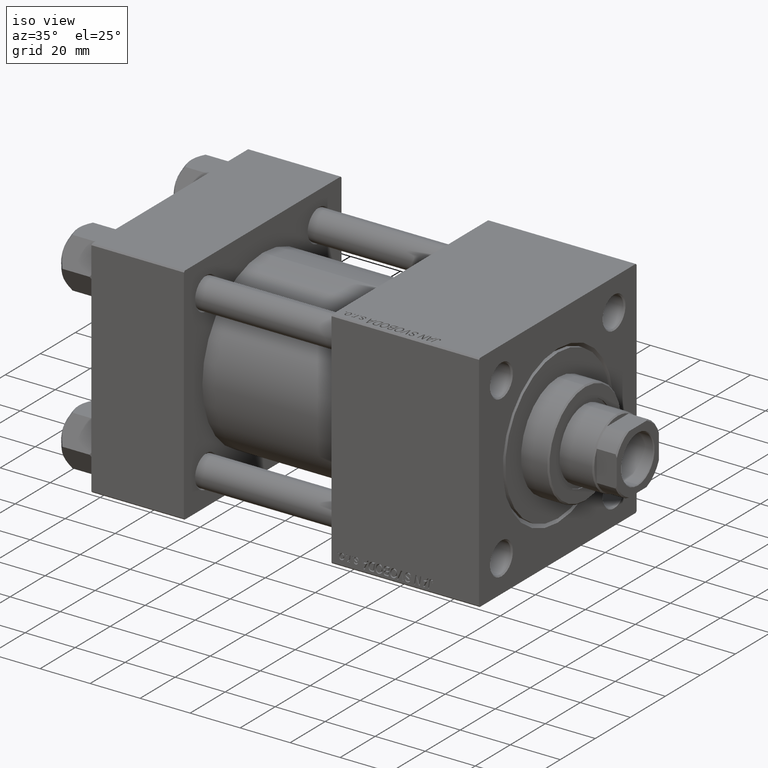
[diagram: clean part render]
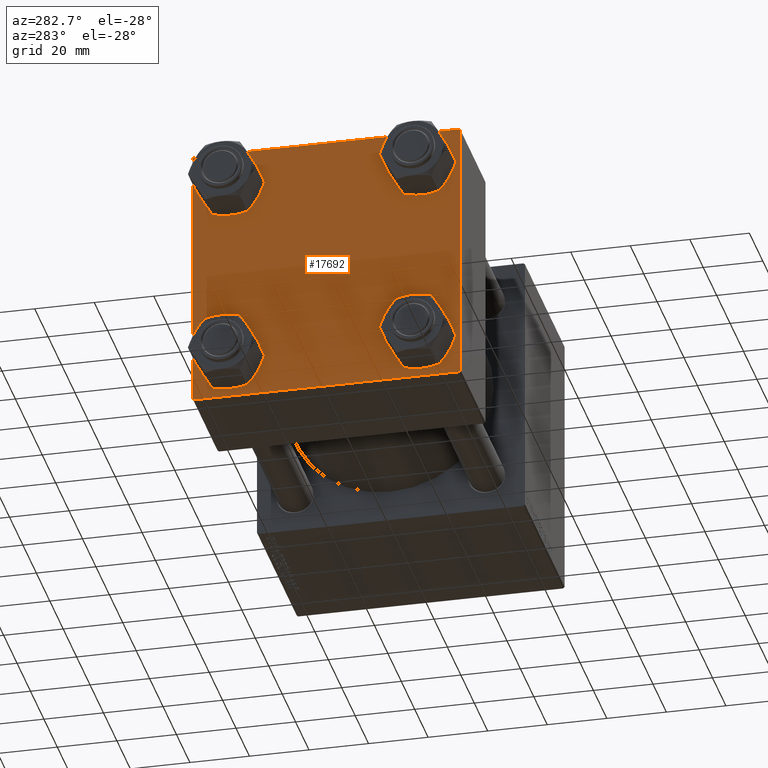
[diagram: tour spotlight — one face highlighted and labeled with its STEP entity id]
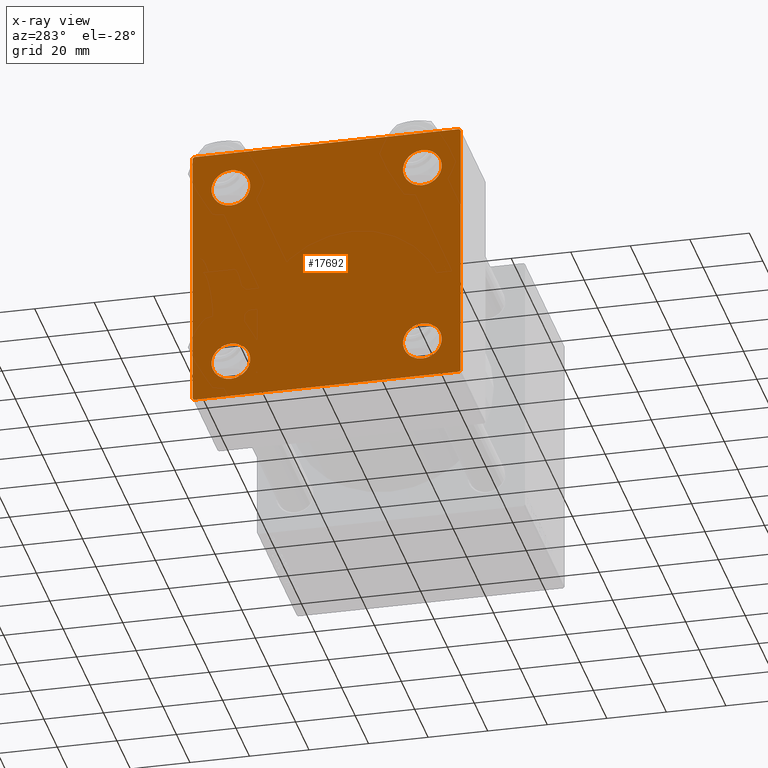
[diagram: x-ray of the same camera — body ghosted, this tour face saturated]
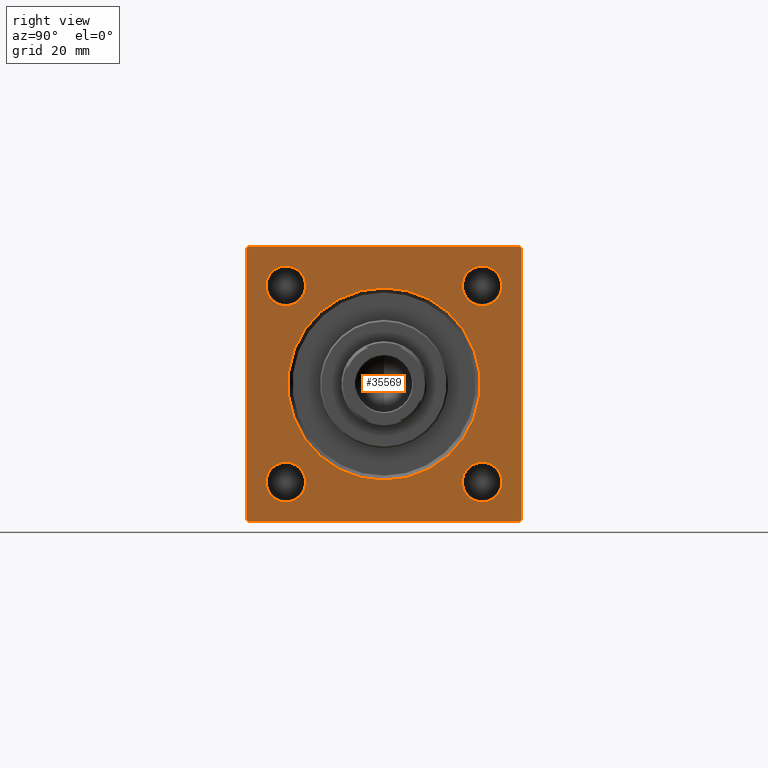
[diagram: tour spotlight — one face highlighted and labeled with its STEP entity id]
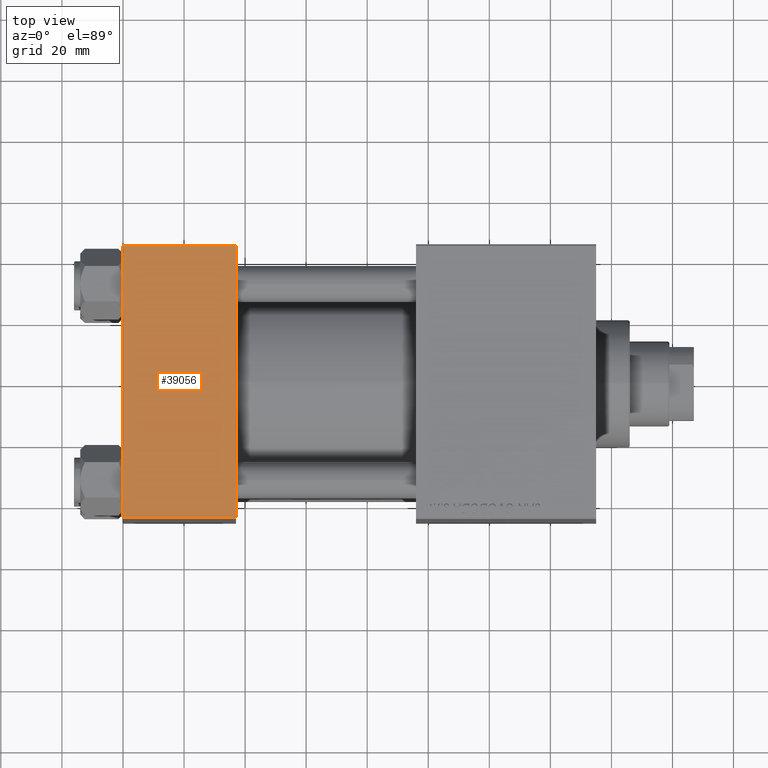
[diagram: tour spotlight — one face highlighted and labeled with its STEP entity id]
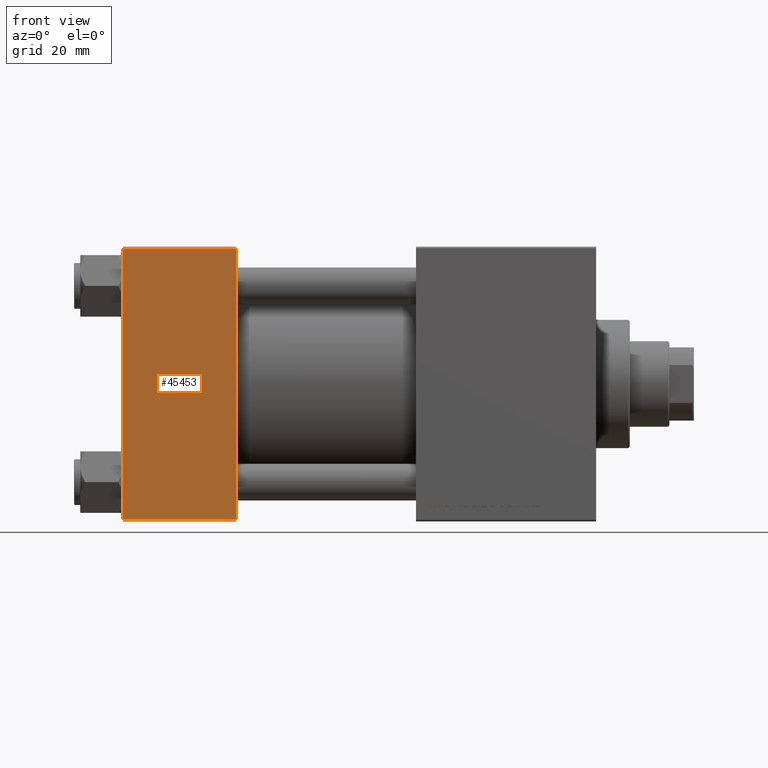
[diagram: tour spotlight — one face highlighted and labeled with its STEP entity id]
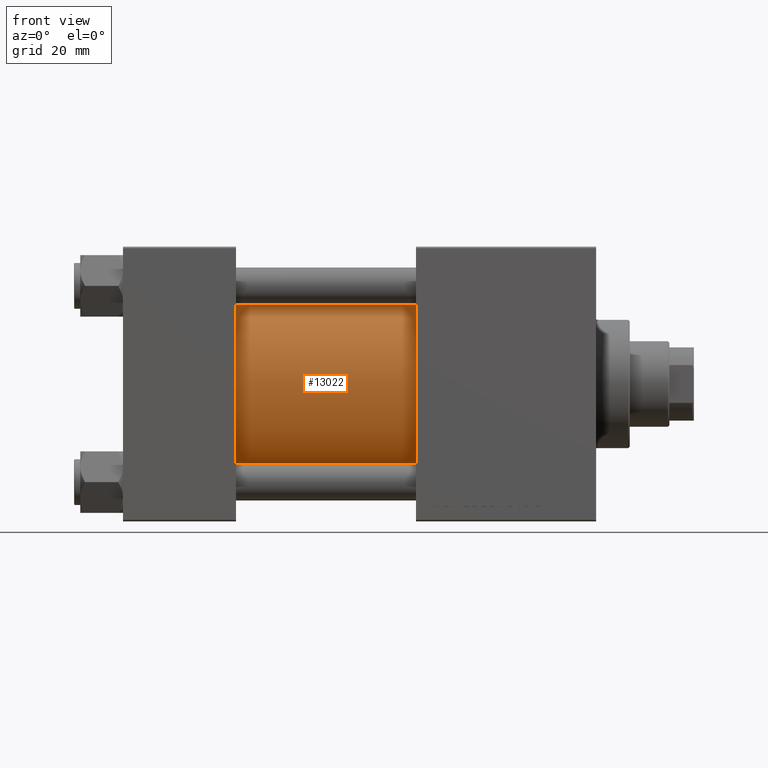
[diagram: tour spotlight — one face highlighted and labeled with its STEP entity id]
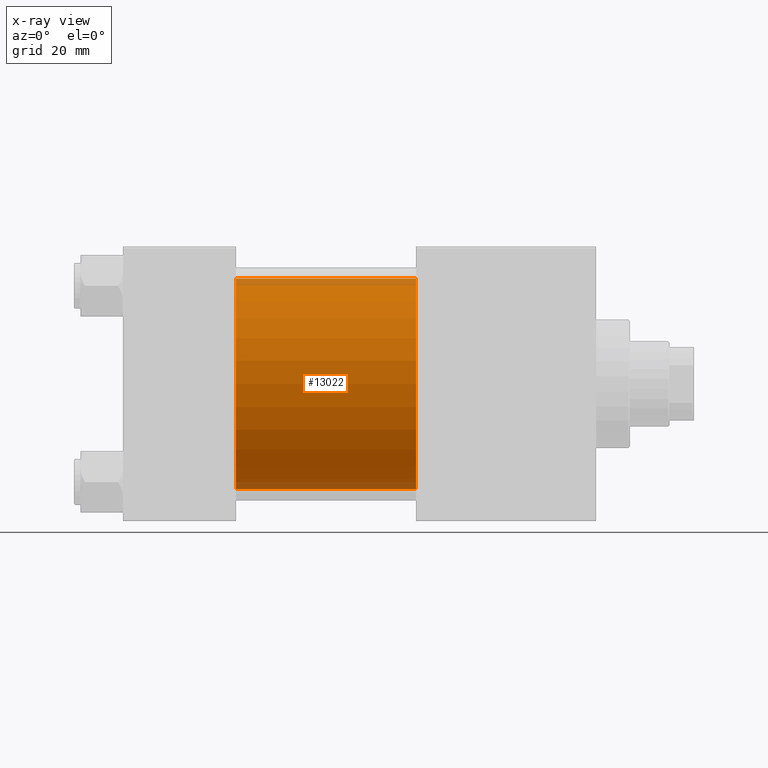
[diagram: x-ray of the same camera — body ghosted, this tour face saturated]
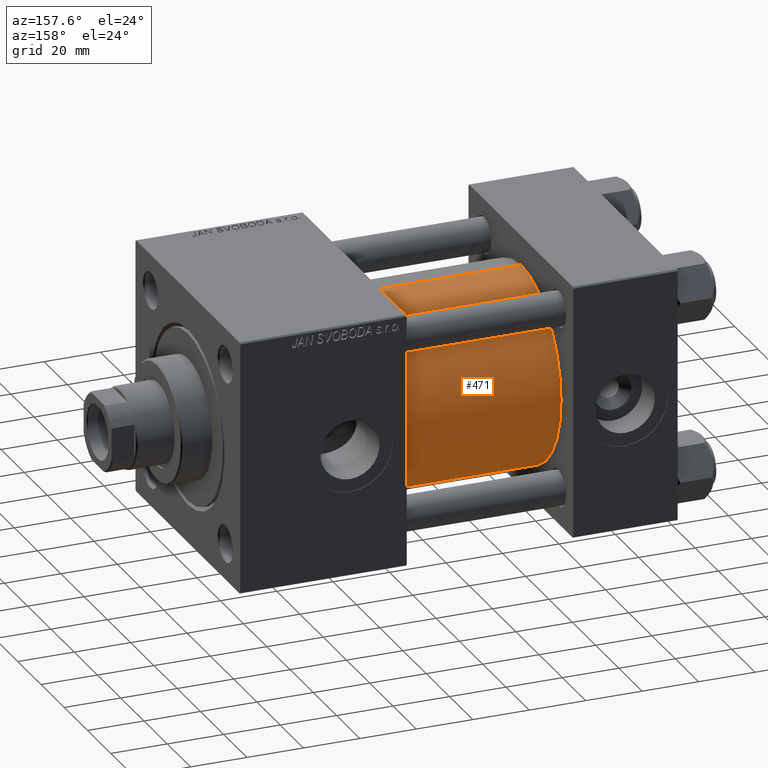
[diagram: tour spotlight — one face highlighted and labeled with its STEP entity id]
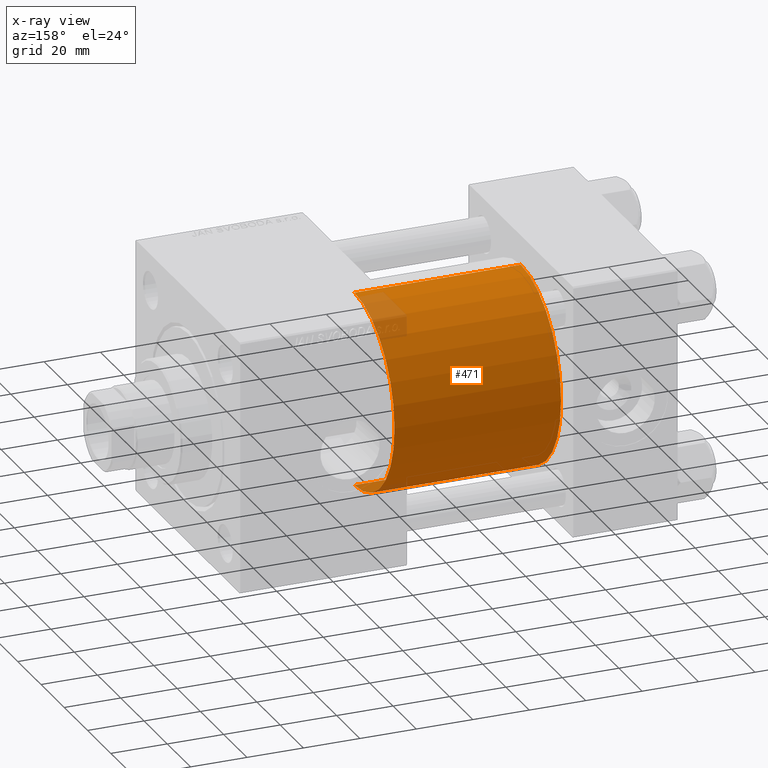
[diagram: x-ray of the same camera — body ghosted, this tour face saturated]
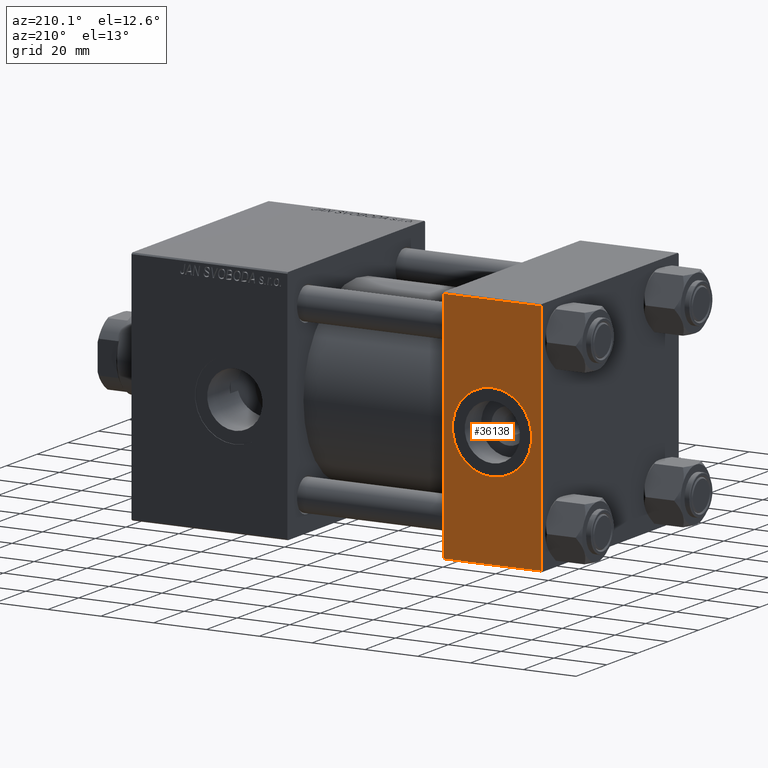
[diagram: tour spotlight — one face highlighted and labeled with its STEP entity id]
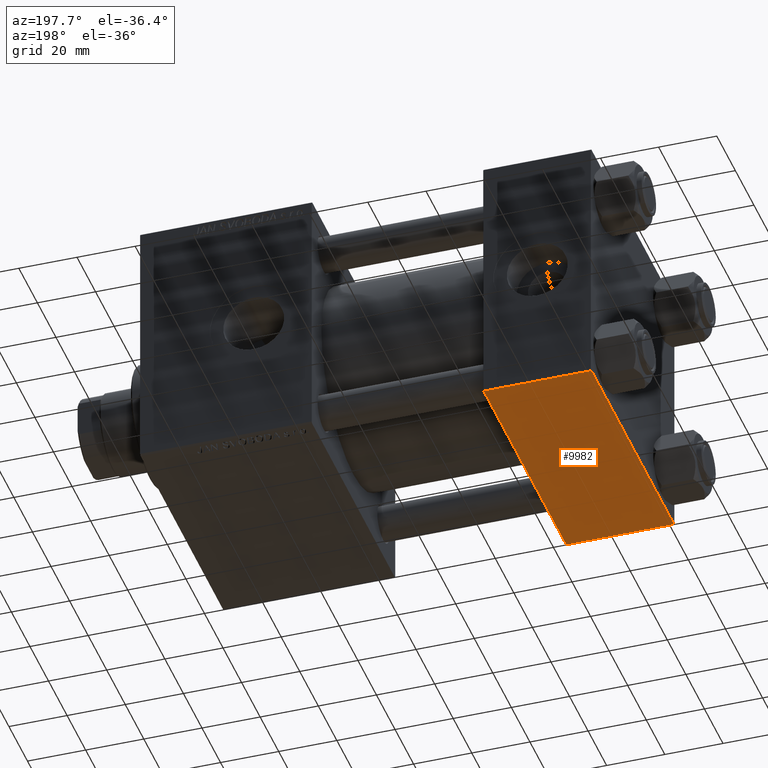
[diagram: tour spotlight — one face highlighted and labeled with its STEP entity id]
A machine part: a face-by-face anatomy tour. The part has 1149 B-rep faces; the first image is the clean iso view, then the 8 largest visible faces are spotlighted one at a time (largest first), each with its STEP entity span.

Face 1 — auxiliary view, entity #17692. An x-ray twin of the same camera follows (body ghosted, this face saturated) — the face is partly hidden behind the body. In plain terms, the highlighted planar face has unit normal (-1, 0, 0).
Definition (entity closure, byte-faithful):
#486 = LINE ( 'NONE', #50270, #1119 ) ;
#1119 = VECTOR ( 'NONE', #19545, 1000.000000000000000 ) ;
#1322 = EDGE_CURVE ( 'NONE', #25451, #4205, #42730, .T. ) ;
#1379 = EDGE_LOOP ( 'NONE', ( #21966, #42613 ) ) ;
#2229 = AXIS2_PLACEMENT_3D ( 'NONE', #31718, #26905, #35535 ) ;
#2374 = EDGE_CURVE ( 'NONE', #20298, #7871, #31446, .T. ) ;
#2646 = DIRECTION ( 'NONE',  ( -0.000000000000000000, -0.7071067811865474617, -0.7071067811865474617 ) ) ;
#2801 = VECTOR ( 'NONE', #7809, 1000.000000000000000 ) ;
#2813 = VERTEX_POINT ( 'NONE', #22726 ) ;
#3236 = EDGE_CURVE ( 'NONE', #4205, #33014, #21611, .T. ) ;
#3612 = DIRECTION ( 'NONE',  ( 0.000000000000000000, 0.000000000000000000, 1.000000000000000000 ) ) ;
#3863 = CARTESIAN_POINT ( 'NONE',  ( 0.000000000000000000, -32.14999999999997726, -32.15000000000000568 ) ) ;
#4002 = LINE ( 'NONE', #34981, #2801 ) ;
#4096 = CARTESIAN_POINT ( 'NONE',  ( 0.000000000000000000, 44.50000000000000000, -44.99999999999999289 ) ) ;
#4205 = VERTEX_POINT ( 'NONE', #21878 ) ;
#4348 = CARTESIAN_POINT ( 'NONE',  ( 0.000000000000000000, 32.14999999999999147, -32.14999999999999858 ) ) ;
#5831 = DIRECTION ( 'NONE',  ( 0.000000000000000000, -0.7071067811865672237, 0.7071067811865279218 ) ) ;
#6208 = AXIS2_PLACEMENT_3D ( 'NONE', #47480, #27947, #27446 ) ;
#6367 = EDGE_CURVE ( 'NONE', #7871, #20298, #46978, .T. ) ;
#6653 = CIRCLE ( 'NONE', #45575, 6.500000000000019540 ) ;
#6854 = ORIENTED_EDGE ( 'NONE', *, *, #6367, .T. ) ;
#7482 = CARTESIAN_POINT ( 'NONE',  ( 0.000000000000000000, -45.00000000000000000, -44.49999999999997158 ) ) ;
#7809 = DIRECTION ( 'NONE',  ( 0.000000000000000000, -1.000000000000000000, -7.709882115452476934E-17 ) ) ;
#7871 = VERTEX_POINT ( 'NONE', #10065 ) ;
#7951 = DIRECTION ( 'NONE',  ( 0.000000000000000000, 0.7071067811865574537, -0.7071067811865376918 ) ) ;
#8235 = DIRECTION ( 'NONE',  ( -0.000000000000000000, 0.000000000000000000, 1.000000000000000000 ) ) ;
#8534 = EDGE_LOOP ( 'NONE', ( #28169, #25522 ) ) ;
#8683 = ORIENTED_EDGE ( 'NONE', *, *, #3236, .T. ) ;
#9093 = DIRECTION ( 'NONE',  ( 1.000000000000000000, -0.000000000000000000, 0.000000000000000000 ) ) ;
#9180 = EDGE_CURVE ( 'NONE', #33014, #21628, #21703, .T. ) ;
#10065 = CARTESIAN_POINT ( 'NONE',  ( 0.000000000000000000, 32.14999999999999147, 25.64999999999997726 ) ) ;
#10106 = CARTESIAN_POINT ( 'NONE',  ( 0.000000000000000000, -32.14999999999997726, -32.15000000000000568 ) ) ;
#10177 = EDGE_LOOP ( 'NONE', ( #36366, #6854 ) ) ;
#11027 = DIRECTION ( 'NONE',  ( 1.000000000000000000, -0.000000000000000000, 0.000000000000000000 ) ) ;
#11452 = ORIENTED_EDGE ( 'NONE', *, *, #9180, .T. ) ;
#12214 = DIRECTION ( 'NONE',  ( 0.000000000000000000, 0.000000000000000000, 1.000000000000000000 ) ) ;
#14054 = CARTESIAN_POINT ( 'NONE',  ( 0.000000000000000000, -32.14999999999997726, 38.64999999999999147 ) ) ;
#14386 = ORIENTED_EDGE ( 'NONE', *, *, #1322, .T. ) ;
#14489 = CARTESIAN_POINT ( 'NONE',  ( 0.000000000000000000, -45.00000000000000000, 44.99999999999998579 ) ) ;
#14636 = AXIS2_PLACEMENT_3D ( 'NONE', #4348, #46992, #12214 ) ;
#14850 = CARTESIAN_POINT ( 'NONE',  ( 0.000000000000000000, 32.14999999999999147, -25.64999999999997726 ) ) ;
#15681 = AXIS2_PLACEMENT_3D ( 'NONE', #35656, #20408, #8235 ) ;
#16304 = EDGE_CURVE ( 'NONE', #23198, #44279, #23721, .T. ) ;
#16445 = ORIENTED_EDGE ( 'NONE', *, *, #45573, .F. ) ;
#16794 = VERTEX_POINT ( 'NONE', #7482 ) ;
#17392 = VERTEX_POINT ( 'NONE', #19052 ) ;
#17599 = CARTESIAN_POINT ( 'NONE',  ( 0.000000000000000000, 45.00000000000000000, -44.49999999999996447 ) ) ;
#17692 = ADVANCED_FACE ( 'NONE', ( #38961, #43013, #27287, #39708, #20168 ), #43263, .T. ) ;
#18082 = AXIS2_PLACEMENT_3D ( 'NONE', #10106, #9093, #32718 ) ;
#19052 = CARTESIAN_POINT ( 'NONE',  ( 0.000000000000000000, -45.00000000000000000, 44.49999999999998579 ) ) ;
#19108 = DIRECTION ( 'NONE',  ( 1.000000000000000000, -0.000000000000000000, 0.000000000000000000 ) ) ;
#19413 = EDGE_CURVE ( 'NONE', #25451, #39112, #486, .T. ) ;
#19475 = VERTEX_POINT ( 'NONE', #20532 ) ;
#19517 = EDGE_LOOP ( 'NONE', ( #8683, #11452, #44735, #47481, #16445, #24128, #26364, #14386 ) ) ;
#19545 = DIRECTION ( 'NONE',  ( 0.000000000000000000, -1.000000000000000000, -2.312964634635742957E-16 ) ) ;
#20168 = FACE_OUTER_BOUND ( 'NONE', #19517, .T. ) ;
#20298 = VERTEX_POINT ( 'NONE', #37546 ) ;
#20316 = EDGE_CURVE ( 'NONE', #21628, #2813, #4002, .T. ) ;
#20408 = DIRECTION ( 'NONE',  ( -1.000000000000000000, 0.000000000000000000, -0.000000000000000000 ) ) ;
#20532 = CARTESIAN_POINT ( 'NONE',  ( 0.000000000000000000, 32.14999999999999147, -38.65000000000001990 ) ) ;
#20641 = CARTESIAN_POINT ( 'NONE',  ( 0.000000000000000000, 32.14999999999999147, 32.14999999999999858 ) ) ;
#20996 = DIRECTION ( 'NONE',  ( -0.000000000000000000, 0.7071067811865474617, 0.7071067811865474617 ) ) ;
#21611 = LINE ( 'NONE', #37602, #42812 ) ;
#21613 = CIRCLE ( 'NONE', #6208, 6.499999999999977796 ) ;
#21628 = VERTEX_POINT ( 'NONE', #4096 ) ;
#21703 = LINE ( 'NONE', #37182, #35790 ) ;
#21878 = CARTESIAN_POINT ( 'NONE',  ( 0.000000000000000000, 45.00000000000000000, 44.49999999999999289 ) ) ;
#21966 = ORIENTED_EDGE ( 'NONE', *, *, #16304, .T. ) ;
#22591 = CARTESIAN_POINT ( 'NONE',  ( 0.000000000000000000, 32.14999999999999147, -32.14999999999999858 ) ) ;
#22713 = EDGE_CURVE ( 'NONE', #44279, #23198, #45815, .T. ) ;
#22726 = CARTESIAN_POINT ( 'NONE',  ( 0.000000000000000000, -44.49999999999994316, -45.00000000000000000 ) ) ;
#22835 = DIRECTION ( 'NONE',  ( 0.000000000000000000, 0.000000000000000000, 1.000000000000000000 ) ) ;
#23198 = VERTEX_POINT ( 'NONE', #26292 ) ;
#23721 = CIRCLE ( 'NONE', #18082, 6.499999999999977796 ) ;
#23842 = ORIENTED_EDGE ( 'NONE', *, *, #26513, .T. ) ;
#24128 = ORIENTED_EDGE ( 'NONE', *, *, #24713, .T. ) ;
#24713 = EDGE_CURVE ( 'NONE', #17392, #39112, #36236, .T. ) ;
#25102 = AXIS2_PLACEMENT_3D ( 'NONE', #20641, #31324, #47791 ) ;
#25142 = CARTESIAN_POINT ( 'NONE',  ( 0.000000000000000000, -44.74999999999873523, -44.75000000000122924 ) ) ;
#25451 = VERTEX_POINT ( 'NONE', #45731 ) ;
#25522 = ORIENTED_EDGE ( 'NONE', *, *, #38822, .T. ) ;
#26279 = DIRECTION ( 'NONE',  ( 0.000000000000000000, 0.000000000000000000, 1.000000000000000000 ) ) ;
#26292 = CARTESIAN_POINT ( 'NONE',  ( 0.000000000000000000, -32.14999999999997726, -25.65000000000002700 ) ) ;
#26364 = ORIENTED_EDGE ( 'NONE', *, *, #19413, .F. ) ;
#26387 = ORIENTED_EDGE ( 'NONE', *, *, #48340, .T. ) ;
#26513 = EDGE_CURVE ( 'NONE', #46171, #38156, #21613, .T. ) ;
#26905 = DIRECTION ( 'NONE',  ( 1.000000000000000000, -0.000000000000000000, 0.000000000000000000 ) ) ;
#27287 = FACE_BOUND ( 'NONE', #8534, .T. ) ;
#27348 = VECTOR ( 'NONE', #7951, 999.9999999999998863 ) ;
#27446 = DIRECTION ( 'NONE',  ( 0.000000000000000000, 0.000000000000000000, 1.000000000000000000 ) ) ;
#27947 = DIRECTION ( 'NONE',  ( 1.000000000000000000, -0.000000000000000000, 0.000000000000000000 ) ) ;
#28169 = ORIENTED_EDGE ( 'NONE', *, *, #43917, .T. ) ;
#29416 = VECTOR ( 'NONE', #29972, 1000.000000000000000 ) ;
#29972 = DIRECTION ( 'NONE',  ( 0.000000000000000000, 0.000000000000000000, -1.000000000000000000 ) ) ;
#31324 = DIRECTION ( 'NONE',  ( 1.000000000000000000, -0.000000000000000000, 0.000000000000000000 ) ) ;
#31446 = CIRCLE ( 'NONE', #2229, 6.500000000000019540 ) ;
#31679 = CARTESIAN_POINT ( 'NONE',  ( -0.000000000000000000, -44.74999999999999289, 44.74999999999999289 ) ) ;
#31718 = CARTESIAN_POINT ( 'NONE',  ( 0.000000000000000000, 32.14999999999999147, 32.14999999999999858 ) ) ;
#32718 = DIRECTION ( 'NONE',  ( 0.000000000000000000, 0.000000000000000000, 1.000000000000000000 ) ) ;
#33014 = VERTEX_POINT ( 'NONE', #17599 ) ;
#34981 = CARTESIAN_POINT ( 'NONE',  ( 0.000000000000000000, 45.00000000000000000, -44.99999999999999289 ) ) ;
#35535 = DIRECTION ( 'NONE',  ( 0.000000000000000000, 0.000000000000000000, 1.000000000000000000 ) ) ;
#35656 = CARTESIAN_POINT ( 'NONE',  ( 0.000000000000000000, 0.000000000000000000, 0.000000000000000000 ) ) ;
#35790 = VECTOR ( 'NONE', #2646, 1000.000000000000114 ) ;
#36236 = LINE ( 'NONE', #31679, #45932 ) ;
#36366 = ORIENTED_EDGE ( 'NONE', *, *, #2374, .T. ) ;
#37182 = CARTESIAN_POINT ( 'NONE',  ( 0.000000000000000000, 44.74999999999999289, -44.74999999999999289 ) ) ;
#37546 = CARTESIAN_POINT ( 'NONE',  ( 0.000000000000000000, 32.14999999999999147, 38.65000000000001990 ) ) ;
#37602 = CARTESIAN_POINT ( 'NONE',  ( 0.000000000000000000, 45.00000000000000000, 45.00000000000000711 ) ) ;
#38156 = VERTEX_POINT ( 'NONE', #45438 ) ;
#38373 = VERTEX_POINT ( 'NONE', #14850 ) ;
#38696 = CARTESIAN_POINT ( 'NONE',  ( 0.000000000000000000, -32.14999999999997726, 32.15000000000000568 ) ) ;
#38822 = EDGE_CURVE ( 'NONE', #19475, #38373, #39768, .T. ) ;
#38961 = FACE_BOUND ( 'NONE', #39174, .T. ) ;
#39112 = VERTEX_POINT ( 'NONE', #46186 ) ;
#39174 = EDGE_LOOP ( 'NONE', ( #23842, #26387 ) ) ;
#39708 = FACE_BOUND ( 'NONE', #10177, .T. ) ;
#39768 = CIRCLE ( 'NONE', #14636, 6.500000000000019540 ) ;
#41396 = DIRECTION ( 'NONE',  ( 0.000000000000000000, 0.000000000000000000, -1.000000000000000000 ) ) ;
#41569 = CARTESIAN_POINT ( 'NONE',  ( 0.000000000000000000, -32.14999999999997726, -38.64999999999998437 ) ) ;
#41796 = AXIS2_PLACEMENT_3D ( 'NONE', #3863, #19108, #3612 ) ;
#42613 = ORIENTED_EDGE ( 'NONE', *, *, #22713, .T. ) ;
#42730 = LINE ( 'NONE', #50113, #27348 ) ;
#42812 = VECTOR ( 'NONE', #41396, 1000.000000000000000 ) ;
#42925 = EDGE_CURVE ( 'NONE', #2813, #16794, #48233, .T. ) ;
#43013 = FACE_BOUND ( 'NONE', #1379, .T. ) ;
#43110 = VECTOR ( 'NONE', #5831, 1000.000000000000000 ) ;
#43263 = PLANE ( 'NONE',  #15681 ) ;
#43279 = AXIS2_PLACEMENT_3D ( 'NONE', #38696, #11027, #26279 ) ;
#43917 = EDGE_CURVE ( 'NONE', #38373, #19475, #6653, .T. ) ;
#44116 = CIRCLE ( 'NONE', #43279, 6.499999999999977796 ) ;
#44279 = VERTEX_POINT ( 'NONE', #41569 ) ;
#44735 = ORIENTED_EDGE ( 'NONE', *, *, #20316, .T. ) ;
#45438 = CARTESIAN_POINT ( 'NONE',  ( 0.000000000000000000, -32.14999999999997726, 25.65000000000002700 ) ) ;
#45573 = EDGE_CURVE ( 'NONE', #17392, #16794, #48500, .T. ) ;
#45575 = AXIS2_PLACEMENT_3D ( 'NONE', #22591, #45691, #22835 ) ;
#45691 = DIRECTION ( 'NONE',  ( 1.000000000000000000, -0.000000000000000000, 0.000000000000000000 ) ) ;
#45731 = CARTESIAN_POINT ( 'NONE',  ( 0.000000000000000000, 44.49999999999997158, 45.00000000000000711 ) ) ;
#45815 = CIRCLE ( 'NONE', #41796, 6.499999999999977796 ) ;
#45932 = VECTOR ( 'NONE', #20996, 1000.000000000000114 ) ;
#46171 = VERTEX_POINT ( 'NONE', #14054 ) ;
#46186 = CARTESIAN_POINT ( 'NONE',  ( 0.000000000000000000, -44.49999999999997158, 44.99999999999998579 ) ) ;
#46978 = CIRCLE ( 'NONE', #25102, 6.500000000000019540 ) ;
#46992 = DIRECTION ( 'NONE',  ( 1.000000000000000000, -0.000000000000000000, 0.000000000000000000 ) ) ;
#47480 = CARTESIAN_POINT ( 'NONE',  ( 0.000000000000000000, -32.14999999999997726, 32.15000000000000568 ) ) ;
#47481 = ORIENTED_EDGE ( 'NONE', *, *, #42925, .T. ) ;
#47791 = DIRECTION ( 'NONE',  ( 0.000000000000000000, 0.000000000000000000, 1.000000000000000000 ) ) ;
#48233 = LINE ( 'NONE', #25142, #43110 ) ;
#48340 = EDGE_CURVE ( 'NONE', #38156, #46171, #44116, .T. ) ;
#48500 = LINE ( 'NONE', #14489, #29416 ) ;
#50113 = CARTESIAN_POINT ( 'NONE',  ( 0.000000000000000000, 44.74999999999936762, 44.75000000000061107 ) ) ;
#50270 = CARTESIAN_POINT ( 'NONE',  ( 0.000000000000000000, 45.00000000000000000, 45.00000000000000711 ) ) ;

Face 2 — right view, entity #35569. In plain terms, the highlighted planar face has unit normal (-1, 0, 0).
Definition (entity closure, byte-faithful):
#754 = CIRCLE ( 'NONE', #19400, 6.499999999999977796 ) ;
#865 = VERTEX_POINT ( 'NONE', #38232 ) ;
#1219 = LINE ( 'NONE', #16724, #49058 ) ;
#1353 = LINE ( 'NONE', #13541, #24520 ) ;
#1980 = DIRECTION ( 'NONE',  ( 0.000000000000000000, 0.000000000000000000, -1.000000000000000000 ) ) ;
#2087 = EDGE_CURVE ( 'NONE', #29744, #44042, #39525, .T. ) ;
#2252 = CARTESIAN_POINT ( 'NONE',  ( 155.0000000000000000, -32.14999999999999858, 38.64999999999997726 ) ) ;
#2996 = CARTESIAN_POINT ( 'NONE',  ( 155.0000000000000000, 44.50000000000000000, -44.99999999999998579 ) ) ;
#3174 = DIRECTION ( 'NONE',  ( -1.000000000000000000, 0.000000000000000000, -0.000000000000000000 ) ) ;
#3466 = VERTEX_POINT ( 'NONE', #18684 ) ;
#3879 = VECTOR ( 'NONE', #1980, 1000.000000000000000 ) ;
#3990 = LINE ( 'NONE', #39022, #48878 ) ;
#4491 = EDGE_CURVE ( 'NONE', #7602, #16468, #33952, .T. ) ;
#4901 = CARTESIAN_POINT ( 'NONE',  ( 155.0000000000000000, -45.00000000000000000, 44.50000000000002842 ) ) ;
#5995 = VECTOR ( 'NONE', #39196, 1000.000000000000114 ) ;
#6335 = VERTEX_POINT ( 'NONE', #28259 ) ;
#6705 = EDGE_LOOP ( 'NONE', ( #7517, #9738, #23184, #19004, #31778, #38870, #15391, #46702 ) ) ;
#6785 = ORIENTED_EDGE ( 'NONE', *, *, #30963, .T. ) ;
#6825 = DIRECTION ( 'NONE',  ( -0.000000000000000000, 0.7071067811865474617, 0.7071067811865474617 ) ) ;
#7076 = AXIS2_PLACEMENT_3D ( 'NONE', #11444, #30749, #11198 ) ;
#7517 = ORIENTED_EDGE ( 'NONE', *, *, #22130, .T. ) ;
#7602 = VERTEX_POINT ( 'NONE', #50225 ) ;
#8670 = AXIS2_PLACEMENT_3D ( 'NONE', #30835, #3174, #38705 ) ;
#8987 = CIRCLE ( 'NONE', #21993, 6.499999999999977796 ) ;
#9007 = DIRECTION ( 'NONE',  ( 0.000000000000000000, 0.000000000000000000, 1.000000000000000000 ) ) ;
#9617 = CARTESIAN_POINT ( 'NONE',  ( 155.0000000000000000, 45.00000000000000000, -44.49999999999995737 ) ) ;
#9738 = ORIENTED_EDGE ( 'NONE', *, *, #12037, .T. ) ;
#9816 = DIRECTION ( 'NONE',  ( -1.000000000000000000, 0.000000000000000000, -0.000000000000000000 ) ) ;
#9867 = CARTESIAN_POINT ( 'NONE',  ( 155.0000000000000000, 45.00000000000000000, -44.49999999999998579 ) ) ;
#9879 = EDGE_CURVE ( 'NONE', #16468, #7602, #26879, .T. ) ;
#10292 = AXIS2_PLACEMENT_3D ( 'NONE', #48416, #9816, #13640 ) ;
#10356 = CARTESIAN_POINT ( 'NONE',  ( 155.0000000000000000, 32.14999999999999147, -25.65000000000001990 ) ) ;
#10382 = ORIENTED_EDGE ( 'NONE', *, *, #18216, .T. ) ;
#10631 = AXIS2_PLACEMENT_3D ( 'NONE', #16597, #46801, #20149 ) ;
#11198 = DIRECTION ( 'NONE',  ( 0.000000000000000000, 0.000000000000000000, 1.000000000000000000 ) ) ;
#11444 = CARTESIAN_POINT ( 'NONE',  ( 155.0000000000000000, 0.000000000000000000, 0.000000000000000000 ) ) ;
#11601 = DIRECTION ( 'NONE',  ( 0.000000000000000000, -0.7071067811865474617, 0.7071067811865474617 ) ) ;
#11652 = CARTESIAN_POINT ( 'NONE',  ( 155.0000000000000000, 45.00000000000000000, 45.00000000000001421 ) ) ;
#11664 = CARTESIAN_POINT ( 'NONE',  ( 155.0000000000000000, 44.50000000000002842, 45.00000000000001421 ) ) ;
#12037 = EDGE_CURVE ( 'NONE', #48294, #865, #1353, .T. ) ;
#12686 = FACE_BOUND ( 'NONE', #16003, .T. ) ;
#13541 = CARTESIAN_POINT ( 'NONE',  ( 155.0000000000000000, -44.50000000000005684, -45.00000000000000000 ) ) ;
#13640 = DIRECTION ( 'NONE',  ( 0.000000000000000000, 0.000000000000000000, 1.000000000000000000 ) ) ;
#13973 = VERTEX_POINT ( 'NONE', #32305 ) ;
#13999 = ORIENTED_EDGE ( 'NONE', *, *, #38494, .T. ) ;
#14089 = AXIS2_PLACEMENT_3D ( 'NONE', #24864, #44398, #28412 ) ;
#14719 = VERTEX_POINT ( 'NONE', #43728 ) ;
#15391 = ORIENTED_EDGE ( 'NONE', *, *, #44075, .T. ) ;
#16003 = EDGE_LOOP ( 'NONE', ( #40041, #25088 ) ) ;
#16008 = FACE_OUTER_BOUND ( 'NONE', #6705, .T. ) ;
#16139 = CARTESIAN_POINT ( 'NONE',  ( 155.0000000000000000, 32.14999999999999147, -32.14999999999999858 ) ) ;
#16468 = VERTEX_POINT ( 'NONE', #27347 ) ;
#16502 = CARTESIAN_POINT ( 'NONE',  ( 155.0000000000000000, 0.000000000000000000, 0.000000000000000000 ) ) ;
#16506 = EDGE_CURVE ( 'NONE', #14719, #46196, #3990, .T. ) ;
#16597 = CARTESIAN_POINT ( 'NONE',  ( 155.0000000000000000, -32.14999999999999858, 32.14999999999999858 ) ) ;
#16724 = CARTESIAN_POINT ( 'NONE',  ( 155.0000000000000000, -45.00000000000000000, 45.00000000000000000 ) ) ;
#17681 = EDGE_CURVE ( 'NONE', #46420, #865, #46819, .T. ) ;
#17819 = EDGE_LOOP ( 'NONE', ( #10382, #29314 ) ) ;
#18216 = EDGE_CURVE ( 'NONE', #44042, #29744, #48133, .T. ) ;
#18335 = DIRECTION ( 'NONE',  ( 0.000000000000000000, 0.000000000000000000, 1.000000000000000000 ) ) ;
#18681 = ORIENTED_EDGE ( 'NONE', *, *, #31493, .T. ) ;
#18684 = CARTESIAN_POINT ( 'NONE',  ( 155.0000000000000000, -45.00000000000000000, 44.50000000000002842 ) ) ;
#19004 = ORIENTED_EDGE ( 'NONE', *, *, #35627, .T. ) ;
#19149 = CARTESIAN_POINT ( 'NONE',  ( 155.0000000000000000, -32.14999999999999858, -32.14999999999999858 ) ) ;
#19400 = AXIS2_PLACEMENT_3D ( 'NONE', #16139, #31618, #47090 ) ;
#19716 = EDGE_LOOP ( 'NONE', ( #13999, #39556 ) ) ;
#20149 = DIRECTION ( 'NONE',  ( 0.000000000000000000, 0.000000000000000000, 1.000000000000000000 ) ) ;
#20204 = VERTEX_POINT ( 'NONE', #2252 ) ;
#20729 = CIRCLE ( 'NONE', #50032, 31.49999999999997158 ) ;
#21050 = FACE_BOUND ( 'NONE', #28543, .T. ) ;
#21457 = CARTESIAN_POINT ( 'NONE',  ( 155.0000000000000000, 0.000000000000000000, 0.000000000000000000 ) ) ;
#21993 = AXIS2_PLACEMENT_3D ( 'NONE', #29810, #25760, #25509 ) ;
#22015 = VERTEX_POINT ( 'NONE', #43377 ) ;
#22130 = EDGE_CURVE ( 'NONE', #3466, #48294, #1219, .T. ) ;
#22888 = VERTEX_POINT ( 'NONE', #10356 ) ;
#23184 = ORIENTED_EDGE ( 'NONE', *, *, #17681, .F. ) ;
#24084 = CIRCLE ( 'NONE', #10292, 6.499999999999977796 ) ;
#24098 = LINE ( 'NONE', #11652, #26124 ) ;
#24216 = LINE ( 'NONE', #4901, #5995 ) ;
#24361 = DIRECTION ( 'NONE',  ( -0.000000000000000000, 0.000000000000000000, 1.000000000000000000 ) ) ;
#24520 = VECTOR ( 'NONE', #39700, 1000.000000000000114 ) ;
#24656 = EDGE_LOOP ( 'NONE', ( #6785, #43780 ) ) ;
#24864 = CARTESIAN_POINT ( 'NONE',  ( 155.0000000000000000, 32.14999999999999147, 32.14999999999999858 ) ) ;
#25049 = AXIS2_PLACEMENT_3D ( 'NONE', #16502, #31991, #24361 ) ;
#25088 = ORIENTED_EDGE ( 'NONE', *, *, #4491, .T. ) ;
#25509 = DIRECTION ( 'NONE',  ( 0.000000000000000000, 0.000000000000000000, 1.000000000000000000 ) ) ;
#25760 = DIRECTION ( 'NONE',  ( -1.000000000000000000, 0.000000000000000000, -0.000000000000000000 ) ) ;
#26124 = VECTOR ( 'NONE', #35276, 1000.000000000000000 ) ;
#26879 = CIRCLE ( 'NONE', #45501, 6.499999999999977796 ) ;
#27347 = CARTESIAN_POINT ( 'NONE',  ( 155.0000000000000000, -32.14999999999999858, -38.64999999999997726 ) ) ;
#27769 = EDGE_CURVE ( 'NONE', #34717, #13973, #20729, .T. ) ;
#28175 = FACE_BOUND ( 'NONE', #19716, .T. ) ;
#28259 = CARTESIAN_POINT ( 'NONE',  ( 155.0000000000000000, -44.50000000000000000, 45.00000000000000000 ) ) ;
#28388 = DIRECTION ( 'NONE',  ( 0.000000000000000000, 0.000000000000000000, -1.000000000000000000 ) ) ;
#28412 = DIRECTION ( 'NONE',  ( 0.000000000000000000, 0.000000000000000000, 1.000000000000000000 ) ) ;
#28543 = EDGE_LOOP ( 'NONE', ( #18681, #34624 ) ) ;
#28897 = CARTESIAN_POINT ( 'NONE',  ( 155.0000000000000000, 45.00000000000000000, 45.00000000000001421 ) ) ;
#29314 = ORIENTED_EDGE ( 'NONE', *, *, #2087, .T. ) ;
#29744 = VERTEX_POINT ( 'NONE', #47075 ) ;
#29810 = CARTESIAN_POINT ( 'NONE',  ( 155.0000000000000000, -32.14999999999999858, 32.14999999999999858 ) ) ;
#30477 = CARTESIAN_POINT ( 'NONE',  ( 155.0000000000000000, 3.857637417314158745E-15, 31.49999999999997158 ) ) ;
#30749 = DIRECTION ( 'NONE',  ( -1.000000000000000000, 0.000000000000000000, -0.000000000000000000 ) ) ;
#30817 = DIRECTION ( 'NONE',  ( 0.000000000000000000, 0.000000000000000000, 1.000000000000000000 ) ) ;
#30835 = CARTESIAN_POINT ( 'NONE',  ( 155.0000000000000000, 32.14999999999999147, 32.14999999999999858 ) ) ;
#30963 = EDGE_CURVE ( 'NONE', #13973, #34717, #36250, .T. ) ;
#31488 = PLANE ( 'NONE',  #25049 ) ;
#31493 = EDGE_CURVE ( 'NONE', #22015, #22888, #24084, .T. ) ;
#31595 = DIRECTION ( 'NONE',  ( 0.000000000000000000, -1.000000000000000000, -1.541976423090495387E-16 ) ) ;
#31618 = DIRECTION ( 'NONE',  ( -1.000000000000000000, 0.000000000000000000, -0.000000000000000000 ) ) ;
#31778 = ORIENTED_EDGE ( 'NONE', *, *, #34151, .F. ) ;
#31991 = DIRECTION ( 'NONE',  ( -1.000000000000000000, 0.000000000000000000, -0.000000000000000000 ) ) ;
#32305 = CARTESIAN_POINT ( 'NONE',  ( 155.0000000000000000, 0.000000000000000000, -31.49999999999997158 ) ) ;
#32314 = AXIS2_PLACEMENT_3D ( 'NONE', #33065, #44978, #18335 ) ;
#32527 = CIRCLE ( 'NONE', #10631, 6.499999999999977796 ) ;
#33065 = CARTESIAN_POINT ( 'NONE',  ( 155.0000000000000000, -32.14999999999999858, -32.14999999999999858 ) ) ;
#33244 = LINE ( 'NONE', #9867, #50170 ) ;
#33952 = CIRCLE ( 'NONE', #32314, 6.499999999999977796 ) ;
#34151 = EDGE_CURVE ( 'NONE', #14719, #35613, #42009, .T. ) ;
#34624 = ORIENTED_EDGE ( 'NONE', *, *, #36994, .T. ) ;
#34717 = VERTEX_POINT ( 'NONE', #30477 ) ;
#34911 = CARTESIAN_POINT ( 'NONE',  ( 155.0000000000000000, 45.00000000000000000, -44.99999999999998579 ) ) ;
#35276 = DIRECTION ( 'NONE',  ( 0.000000000000000000, -1.000000000000000000, -1.541976423090495387E-16 ) ) ;
#35569 = ADVANCED_FACE ( 'NONE', ( #35793, #28175, #12686, #21050, #43651, #16008 ), #31488, .F. ) ;
#35613 = VERTEX_POINT ( 'NONE', #9617 ) ;
#35627 = EDGE_CURVE ( 'NONE', #46420, #35613, #33244, .T. ) ;
#35793 = FACE_BOUND ( 'NONE', #17819, .T. ) ;
#36250 = CIRCLE ( 'NONE', #7076, 31.49999999999997158 ) ;
#36994 = EDGE_CURVE ( 'NONE', #22888, #22015, #754, .T. ) ;
#37575 = VECTOR ( 'NONE', #31595, 1000.000000000000000 ) ;
#38232 = CARTESIAN_POINT ( 'NONE',  ( 155.0000000000000000, -44.50000000000002842, -45.00000000000000000 ) ) ;
#38494 = EDGE_CURVE ( 'NONE', #40528, #20204, #32527, .T. ) ;
#38705 = DIRECTION ( 'NONE',  ( 0.000000000000000000, 0.000000000000000000, 1.000000000000000000 ) ) ;
#38870 = ORIENTED_EDGE ( 'NONE', *, *, #16506, .T. ) ;
#39022 = CARTESIAN_POINT ( 'NONE',  ( 155.0000000000000000, 44.50000000000002842, 45.00000000000001421 ) ) ;
#39196 = DIRECTION ( 'NONE',  ( -0.000000000000000000, -0.7071067811865474617, -0.7071067811865474617 ) ) ;
#39525 = CIRCLE ( 'NONE', #8670, 6.499999999999977796 ) ;
#39556 = ORIENTED_EDGE ( 'NONE', *, *, #41811, .T. ) ;
#39700 = DIRECTION ( 'NONE',  ( 0.000000000000000000, 0.7071067811865474617, -0.7071067811865474617 ) ) ;
#40041 = ORIENTED_EDGE ( 'NONE', *, *, #9879, .T. ) ;
#40528 = VERTEX_POINT ( 'NONE', #42340 ) ;
#40741 = DIRECTION ( 'NONE',  ( -1.000000000000000000, 0.000000000000000000, -0.000000000000000000 ) ) ;
#41811 = EDGE_CURVE ( 'NONE', #20204, #40528, #8987, .T. ) ;
#42009 = LINE ( 'NONE', #28897, #3879 ) ;
#42340 = CARTESIAN_POINT ( 'NONE',  ( 155.0000000000000000, -32.14999999999999858, 25.65000000000001990 ) ) ;
#43126 = CARTESIAN_POINT ( 'NONE',  ( 155.0000000000000000, 32.14999999999999147, 25.65000000000001990 ) ) ;
#43377 = CARTESIAN_POINT ( 'NONE',  ( 155.0000000000000000, 32.14999999999999147, -38.64999999999997726 ) ) ;
#43651 = FACE_BOUND ( 'NONE', #24656, .T. ) ;
#43728 = CARTESIAN_POINT ( 'NONE',  ( 155.0000000000000000, 45.00000000000000000, 44.50000000000004263 ) ) ;
#43780 = ORIENTED_EDGE ( 'NONE', *, *, #27769, .T. ) ;
#44042 = VERTEX_POINT ( 'NONE', #43126 ) ;
#44075 = EDGE_CURVE ( 'NONE', #46196, #6335, #24098, .T. ) ;
#44398 = DIRECTION ( 'NONE',  ( -1.000000000000000000, 0.000000000000000000, -0.000000000000000000 ) ) ;
#44978 = DIRECTION ( 'NONE',  ( -1.000000000000000000, 0.000000000000000000, -0.000000000000000000 ) ) ;
#45501 = AXIS2_PLACEMENT_3D ( 'NONE', #19149, #49123, #30817 ) ;
#46196 = VERTEX_POINT ( 'NONE', #11664 ) ;
#46420 = VERTEX_POINT ( 'NONE', #2996 ) ;
#46702 = ORIENTED_EDGE ( 'NONE', *, *, #48452, .T. ) ;
#46801 = DIRECTION ( 'NONE',  ( -1.000000000000000000, 0.000000000000000000, -0.000000000000000000 ) ) ;
#46819 = LINE ( 'NONE', #34911, #37575 ) ;
#47075 = CARTESIAN_POINT ( 'NONE',  ( 155.0000000000000000, 32.14999999999999147, 38.64999999999997726 ) ) ;
#47090 = DIRECTION ( 'NONE',  ( 0.000000000000000000, 0.000000000000000000, 1.000000000000000000 ) ) ;
#48133 = CIRCLE ( 'NONE', #14089, 6.499999999999977796 ) ;
#48294 = VERTEX_POINT ( 'NONE', #48624 ) ;
#48416 = CARTESIAN_POINT ( 'NONE',  ( 155.0000000000000000, 32.14999999999999147, -32.14999999999999858 ) ) ;
#48452 = EDGE_CURVE ( 'NONE', #6335, #3466, #24216, .T. ) ;
#48624 = CARTESIAN_POINT ( 'NONE',  ( 155.0000000000000000, -45.00000000000000000, -44.50000000000002842 ) ) ;
#48878 = VECTOR ( 'NONE', #11601, 1000.000000000000114 ) ;
#49058 = VECTOR ( 'NONE', #28388, 1000.000000000000000 ) ;
#49123 = DIRECTION ( 'NONE',  ( -1.000000000000000000, 0.000000000000000000, -0.000000000000000000 ) ) ;
#50032 = AXIS2_PLACEMENT_3D ( 'NONE', #21457, #40741, #9007 ) ;
#50170 = VECTOR ( 'NONE', #6825, 1000.000000000000114 ) ;
#50225 = CARTESIAN_POINT ( 'NONE',  ( 155.0000000000000000, -32.14999999999999858, -25.65000000000001990 ) ) ;

Face 3 — top view, entity #39056. In plain terms, the highlighted planar face has unit normal (0, 0, -1).
Definition (entity closure, byte-faithful):
#486 = LINE ( 'NONE', #50270, #1119 ) ;
#1119 = VECTOR ( 'NONE', #19545, 1000.000000000000000 ) ;
#2760 = LINE ( 'NONE', #33749, #11021 ) ;
#3717 = ORIENTED_EDGE ( 'NONE', *, *, #21038, .T. ) ;
#6736 = CARTESIAN_POINT ( 'NONE',  ( 37.00000000000000000, -44.49999999999997158, 44.99999999999998579 ) ) ;
#6926 = CARTESIAN_POINT ( 'NONE',  ( 37.00000000000000000, 44.49999999999997158, 45.00000000000000711 ) ) ;
#8920 = CARTESIAN_POINT ( 'NONE',  ( 37.00000000000000000, -44.50000000000000000, 44.99999999999998579 ) ) ;
#11021 = VECTOR ( 'NONE', #49233, 1000.000000000000000 ) ;
#12185 = VERTEX_POINT ( 'NONE', #6926 ) ;
#13914 = CARTESIAN_POINT ( 'NONE',  ( 0.000000000000000000, 44.49999999999997158, 45.00000000000000711 ) ) ;
#14485 = FACE_OUTER_BOUND ( 'NONE', #42604, .T. ) ;
#15437 = VECTOR ( 'NONE', #32454, 1000.000000000000000 ) ;
#15477 = CARTESIAN_POINT ( 'NONE',  ( 37.00000000000000000, 45.00000000000000000, 45.00000000000000711 ) ) ;
#19290 = PLANE ( 'NONE',  #25178 ) ;
#19413 = EDGE_CURVE ( 'NONE', #25451, #39112, #486, .T. ) ;
#19545 = DIRECTION ( 'NONE',  ( 0.000000000000000000, -1.000000000000000000, -2.312964634635742957E-16 ) ) ;
#21038 = EDGE_CURVE ( 'NONE', #39112, #45190, #32543, .T. ) ;
#24605 = EDGE_CURVE ( 'NONE', #12185, #45190, #2760, .T. ) ;
#25178 = AXIS2_PLACEMENT_3D ( 'NONE', #15477, #26654, #26898 ) ;
#25347 = LINE ( 'NONE', #13914, #15437 ) ;
#25451 = VERTEX_POINT ( 'NONE', #45731 ) ;
#26654 = DIRECTION ( 'NONE',  ( 0.000000000000000000, 2.312964634635742957E-16, -1.000000000000000000 ) ) ;
#26898 = DIRECTION ( 'NONE',  ( 0.000000000000000000, 1.000000000000000000, 2.312964634635742957E-16 ) ) ;
#32454 = DIRECTION ( 'NONE',  ( -1.000000000000000000, 0.000000000000000000, 0.000000000000000000 ) ) ;
#32543 = LINE ( 'NONE', #8920, #44946 ) ;
#33749 = CARTESIAN_POINT ( 'NONE',  ( 37.00000000000000000, 45.00000000000000000, 45.00000000000000711 ) ) ;
#38011 = ORIENTED_EDGE ( 'NONE', *, *, #24605, .F. ) ;
#39056 = ADVANCED_FACE ( 'NONE', ( #14485 ), #19290, .F. ) ;
#39112 = VERTEX_POINT ( 'NONE', #46186 ) ;
#39296 = EDGE_CURVE ( 'NONE', #12185, #25451, #25347, .T. ) ;
#41971 = ORIENTED_EDGE ( 'NONE', *, *, #39296, .T. ) ;
#42219 = ORIENTED_EDGE ( 'NONE', *, *, #19413, .T. ) ;
#42604 = EDGE_LOOP ( 'NONE', ( #42219, #3717, #38011, #41971 ) ) ;
#43710 = DIRECTION ( 'NONE',  ( 1.000000000000000000, 0.000000000000000000, 0.000000000000000000 ) ) ;
#44946 = VECTOR ( 'NONE', #43710, 1000.000000000000000 ) ;
#45190 = VERTEX_POINT ( 'NONE', #6736 ) ;
#45731 = CARTESIAN_POINT ( 'NONE',  ( 0.000000000000000000, 44.49999999999997158, 45.00000000000000711 ) ) ;
#46186 = CARTESIAN_POINT ( 'NONE',  ( 0.000000000000000000, -44.49999999999997158, 44.99999999999998579 ) ) ;
#49233 = DIRECTION ( 'NONE',  ( 0.000000000000000000, -1.000000000000000000, -2.312964634635742957E-16 ) ) ;
#50270 = CARTESIAN_POINT ( 'NONE',  ( 0.000000000000000000, 45.00000000000000000, 45.00000000000000711 ) ) ;

Face 4 — front view, entity #45453. In plain terms, the highlighted planar face has unit normal (0, 1, 0).
Definition (entity closure, byte-faithful):
#479 = EDGE_CURVE ( 'NONE', #34429, #19218, #32548, .T. ) ;
#892 = ORIENTED_EDGE ( 'NONE', *, *, #479, .F. ) ;
#2457 = ORIENTED_EDGE ( 'NONE', *, *, #38133, .T. ) ;
#3300 = CARTESIAN_POINT ( 'NONE',  ( 37.00000000000000000, -45.00000000000000000, -44.49999999999997158 ) ) ;
#6905 = EDGE_CURVE ( 'NONE', #34429, #17392, #27337, .T. ) ;
#7482 = CARTESIAN_POINT ( 'NONE',  ( 0.000000000000000000, -45.00000000000000000, -44.49999999999997158 ) ) ;
#11314 = VECTOR ( 'NONE', #38760, 1000.000000000000000 ) ;
#13890 = EDGE_LOOP ( 'NONE', ( #47454, #2457, #892, #41197 ) ) ;
#14227 = LINE ( 'NONE', #30209, #30068 ) ;
#14489 = CARTESIAN_POINT ( 'NONE',  ( 0.000000000000000000, -45.00000000000000000, 44.99999999999998579 ) ) ;
#16284 = PLANE ( 'NONE',  #49686 ) ;
#16794 = VERTEX_POINT ( 'NONE', #7482 ) ;
#17392 = VERTEX_POINT ( 'NONE', #19052 ) ;
#17833 = DIRECTION ( 'NONE',  ( 0.000000000000000000, 0.000000000000000000, -1.000000000000000000 ) ) ;
#19052 = CARTESIAN_POINT ( 'NONE',  ( 0.000000000000000000, -45.00000000000000000, 44.49999999999998579 ) ) ;
#19218 = VERTEX_POINT ( 'NONE', #3300 ) ;
#19845 = DIRECTION ( 'NONE',  ( 0.000000000000000000, -0.000000000000000000, 1.000000000000000000 ) ) ;
#20093 = CARTESIAN_POINT ( 'NONE',  ( 37.00000000000000000, -45.00000000000000000, 44.99999999999998579 ) ) ;
#27337 = LINE ( 'NONE', #34218, #11314 ) ;
#29416 = VECTOR ( 'NONE', #29972, 1000.000000000000000 ) ;
#29704 = DIRECTION ( 'NONE',  ( 1.000000000000000000, 0.000000000000000000, 0.000000000000000000 ) ) ;
#29972 = DIRECTION ( 'NONE',  ( 0.000000000000000000, 0.000000000000000000, -1.000000000000000000 ) ) ;
#30068 = VECTOR ( 'NONE', #29704, 1000.000000000000000 ) ;
#30209 = CARTESIAN_POINT ( 'NONE',  ( 37.00000000000000000, -45.00000000000000000, -44.50000000000000000 ) ) ;
#32548 = LINE ( 'NONE', #32805, #45939 ) ;
#32805 = CARTESIAN_POINT ( 'NONE',  ( 37.00000000000000000, -45.00000000000000000, 44.99999999999998579 ) ) ;
#34218 = CARTESIAN_POINT ( 'NONE',  ( 37.00000000000000000, -45.00000000000000000, 44.49999999999998579 ) ) ;
#34429 = VERTEX_POINT ( 'NONE', #39697 ) ;
#38133 = EDGE_CURVE ( 'NONE', #16794, #19218, #14227, .T. ) ;
#38760 = DIRECTION ( 'NONE',  ( -1.000000000000000000, 0.000000000000000000, 0.000000000000000000 ) ) ;
#39138 = DIRECTION ( 'NONE',  ( -0.000000000000000000, 1.000000000000000000, 0.000000000000000000 ) ) ;
#39697 = CARTESIAN_POINT ( 'NONE',  ( 37.00000000000000000, -45.00000000000000000, 44.49999999999998579 ) ) ;
#41197 = ORIENTED_EDGE ( 'NONE', *, *, #6905, .T. ) ;
#44187 = FACE_OUTER_BOUND ( 'NONE', #13890, .T. ) ;
#45453 = ADVANCED_FACE ( 'NONE', ( #44187 ), #16284, .F. ) ;
#45573 = EDGE_CURVE ( 'NONE', #17392, #16794, #48500, .T. ) ;
#45939 = VECTOR ( 'NONE', #17833, 1000.000000000000000 ) ;
#47454 = ORIENTED_EDGE ( 'NONE', *, *, #45573, .T. ) ;
#48500 = LINE ( 'NONE', #14489, #29416 ) ;
#49686 = AXIS2_PLACEMENT_3D ( 'NONE', #20093, #39138, #19845 ) ;

Face 5 — front view, entity #13022. An x-ray twin of the same camera follows (body ghosted, this face saturated) — the face is partly hidden behind the body. In plain terms, the highlighted cylindrical surface (partial cylindrical patch) has radius 34.5 mm, axis along (-1, -0, -0).
Definition (entity closure, byte-faithful):
#36 = ORIENTED_EDGE ( 'NONE', *, *, #22475, .T. ) ;
#196 = LINE ( 'NONE', #31427, #44694 ) ;
#1809 = DIRECTION ( 'NONE',  ( -1.000000000000000000, -0.000000000000000000, -0.000000000000000000 ) ) ;
#2587 = CIRCLE ( 'NONE', #3381, 34.50000000000000000 ) ;
#3381 = AXIS2_PLACEMENT_3D ( 'NONE', #19285, #27150, #34773 ) ;
#6348 = CARTESIAN_POINT ( 'NONE',  ( 96.00000000000000000, -2.602085213965210642E-15, 34.50000000000000000 ) ) ;
#7452 = CARTESIAN_POINT ( 'NONE',  ( 37.00000000000000000, 1.622946243093158675E-15, -34.50000000000000000 ) ) ;
#7974 = DIRECTION ( 'NONE',  ( -1.000000000000000000, -0.000000000000000000, -0.000000000000000000 ) ) ;
#10558 = EDGE_CURVE ( 'NONE', #37726, #26065, #2587, .T. ) ;
#10618 = CARTESIAN_POINT ( 'NONE',  ( 96.00000000000000000, -2.602085213965210642E-15, 0.000000000000000000 ) ) ;
#13022 = ADVANCED_FACE ( 'NONE', ( #44210 ), #26374, .T. ) ;
#14427 = ORIENTED_EDGE ( 'NONE', *, *, #19379, .F. ) ;
#16238 = CARTESIAN_POINT ( 'NONE',  ( 96.00000000000000000, -2.602085213965210642E-15, 0.000000000000000000 ) ) ;
#19285 = CARTESIAN_POINT ( 'NONE',  ( 37.00000000000000000, -2.602085213965210642E-15, 0.000000000000000000 ) ) ;
#19379 = EDGE_CURVE ( 'NONE', #38109, #20507, #48984, .T. ) ;
#20507 = VERTEX_POINT ( 'NONE', #22250 ) ;
#22250 = CARTESIAN_POINT ( 'NONE',  ( 96.00000000000000000, 1.622946243093158675E-15, -34.50000000000000000 ) ) ;
#22349 = VECTOR ( 'NONE', #7974, 1000.000000000000000 ) ;
#22475 = EDGE_CURVE ( 'NONE', #38109, #37726, #50141, .T. ) ;
#22718 = CARTESIAN_POINT ( 'NONE',  ( 96.00000000000000000, -2.602085213965210642E-15, 34.50000000000000000 ) ) ;
#25678 = ORIENTED_EDGE ( 'NONE', *, *, #10558, .T. ) ;
#26065 = VERTEX_POINT ( 'NONE', #7452 ) ;
#26374 = CYLINDRICAL_SURFACE ( 'NONE', #46442, 34.50000000000000000 ) ;
#27150 = DIRECTION ( 'NONE',  ( 1.000000000000000000, -0.000000000000000000, 0.000000000000000000 ) ) ;
#27166 = DIRECTION ( 'NONE',  ( 1.000000000000000000, 0.000000000000000000, 0.000000000000000000 ) ) ;
#31427 = CARTESIAN_POINT ( 'NONE',  ( 96.00000000000000000, 1.622946243093158675E-15, -34.50000000000000000 ) ) ;
#31596 = ORIENTED_EDGE ( 'NONE', *, *, #41463, .F. ) ;
#34773 = DIRECTION ( 'NONE',  ( 0.000000000000000000, 0.000000000000000000, 1.000000000000000000 ) ) ;
#35049 = EDGE_LOOP ( 'NONE', ( #31596, #14427, #36, #25678 ) ) ;
#35292 = DIRECTION ( 'NONE',  ( 0.000000000000000000, 0.000000000000000000, -1.000000000000000000 ) ) ;
#35493 = DIRECTION ( 'NONE',  ( -1.000000000000000000, -0.000000000000000000, -0.000000000000000000 ) ) ;
#37726 = VERTEX_POINT ( 'NONE', #42985 ) ;
#38109 = VERTEX_POINT ( 'NONE', #6348 ) ;
#41463 = EDGE_CURVE ( 'NONE', #20507, #26065, #196, .T. ) ;
#42985 = CARTESIAN_POINT ( 'NONE',  ( 37.00000000000000000, -2.602085213965210642E-15, 34.50000000000000000 ) ) ;
#44210 = FACE_OUTER_BOUND ( 'NONE', #35049, .T. ) ;
#44694 = VECTOR ( 'NONE', #35493, 1000.000000000000000 ) ;
#46442 = AXIS2_PLACEMENT_3D ( 'NONE', #10618, #1809, #49478 ) ;
#47334 = AXIS2_PLACEMENT_3D ( 'NONE', #16238, #27166, #35292 ) ;
#48984 = CIRCLE ( 'NONE', #47334, 34.50000000000000000 ) ;
#49478 = DIRECTION ( 'NONE',  ( 0.000000000000000000, 0.000000000000000000, 1.000000000000000000 ) ) ;
#50141 = LINE ( 'NONE', #22718, #22349 ) ;

Face 6 — auxiliary view, entity #471. An x-ray twin of the same camera follows (body ghosted, this face saturated) — the face is partly hidden behind the body. In plain terms, the highlighted cylindrical surface (partial cylindrical patch) has radius 34.5 mm, axis along (-1, -0, -0).
Definition (entity closure, byte-faithful):
#196 = LINE ( 'NONE', #31427, #44694 ) ;
#471 = ADVANCED_FACE ( 'NONE', ( #1567 ), #9938, .T. ) ;
#1567 = FACE_OUTER_BOUND ( 'NONE', #9181, .T. ) ;
#6348 = CARTESIAN_POINT ( 'NONE',  ( 96.00000000000000000, -2.602085213965210642E-15, 34.50000000000000000 ) ) ;
#7107 = DIRECTION ( 'NONE',  ( 0.000000000000000000, 0.000000000000000000, 1.000000000000000000 ) ) ;
#7166 = CARTESIAN_POINT ( 'NONE',  ( 96.00000000000000000, -2.602085213965210642E-15, 0.000000000000000000 ) ) ;
#7452 = CARTESIAN_POINT ( 'NONE',  ( 37.00000000000000000, 1.622946243093158675E-15, -34.50000000000000000 ) ) ;
#7974 = DIRECTION ( 'NONE',  ( -1.000000000000000000, -0.000000000000000000, -0.000000000000000000 ) ) ;
#9181 = EDGE_LOOP ( 'NONE', ( #39377, #42659, #35438, #23888 ) ) ;
#9938 = CYLINDRICAL_SURFACE ( 'NONE', #12702, 34.50000000000000000 ) ;
#11317 = EDGE_CURVE ( 'NONE', #26065, #37726, #48839, .T. ) ;
#12702 = AXIS2_PLACEMENT_3D ( 'NONE', #44467, #28990, #25692 ) ;
#15093 = AXIS2_PLACEMENT_3D ( 'NONE', #7166, #22654, #30522 ) ;
#20449 = AXIS2_PLACEMENT_3D ( 'NONE', #49514, #30219, #7107 ) ;
#20507 = VERTEX_POINT ( 'NONE', #22250 ) ;
#22250 = CARTESIAN_POINT ( 'NONE',  ( 96.00000000000000000, 1.622946243093158675E-15, -34.50000000000000000 ) ) ;
#22349 = VECTOR ( 'NONE', #7974, 1000.000000000000000 ) ;
#22475 = EDGE_CURVE ( 'NONE', #38109, #37726, #50141, .T. ) ;
#22654 = DIRECTION ( 'NONE',  ( 1.000000000000000000, 0.000000000000000000, 0.000000000000000000 ) ) ;
#22718 = CARTESIAN_POINT ( 'NONE',  ( 96.00000000000000000, -2.602085213965210642E-15, 34.50000000000000000 ) ) ;
#23888 = ORIENTED_EDGE ( 'NONE', *, *, #22475, .F. ) ;
#25645 = CIRCLE ( 'NONE', #15093, 34.50000000000000000 ) ;
#25692 = DIRECTION ( 'NONE',  ( 0.000000000000000000, 0.000000000000000000, 1.000000000000000000 ) ) ;
#26065 = VERTEX_POINT ( 'NONE', #7452 ) ;
#28990 = DIRECTION ( 'NONE',  ( -1.000000000000000000, -0.000000000000000000, -0.000000000000000000 ) ) ;
#29084 = EDGE_CURVE ( 'NONE', #20507, #38109, #25645, .T. ) ;
#30219 = DIRECTION ( 'NONE',  ( 1.000000000000000000, -0.000000000000000000, 0.000000000000000000 ) ) ;
#30522 = DIRECTION ( 'NONE',  ( 0.000000000000000000, 0.000000000000000000, -1.000000000000000000 ) ) ;
#31427 = CARTESIAN_POINT ( 'NONE',  ( 96.00000000000000000, 1.622946243093158675E-15, -34.50000000000000000 ) ) ;
#35438 = ORIENTED_EDGE ( 'NONE', *, *, #11317, .T. ) ;
#35493 = DIRECTION ( 'NONE',  ( -1.000000000000000000, -0.000000000000000000, -0.000000000000000000 ) ) ;
#37726 = VERTEX_POINT ( 'NONE', #42985 ) ;
#38109 = VERTEX_POINT ( 'NONE', #6348 ) ;
#39377 = ORIENTED_EDGE ( 'NONE', *, *, #29084, .F. ) ;
#41463 = EDGE_CURVE ( 'NONE', #20507, #26065, #196, .T. ) ;
#42659 = ORIENTED_EDGE ( 'NONE', *, *, #41463, .T. ) ;
#42985 = CARTESIAN_POINT ( 'NONE',  ( 37.00000000000000000, -2.602085213965210642E-15, 34.50000000000000000 ) ) ;
#44467 = CARTESIAN_POINT ( 'NONE',  ( 96.00000000000000000, -2.602085213965210642E-15, 0.000000000000000000 ) ) ;
#44694 = VECTOR ( 'NONE', #35493, 1000.000000000000000 ) ;
#48839 = CIRCLE ( 'NONE', #20449, 34.50000000000000000 ) ;
#49514 = CARTESIAN_POINT ( 'NONE',  ( 37.00000000000000000, -2.602085213965210642E-15, 0.000000000000000000 ) ) ;
#50141 = LINE ( 'NONE', #22718, #22349 ) ;

Face 7 — auxiliary view, entity #36138. In plain terms, the highlighted planar face has unit normal (0, 1, 0).
Definition (entity closure, byte-faithful):
#129 = FACE_BOUND ( 'NONE', #46372, .T. ) ;
#241 = ORIENTED_EDGE ( 'NONE', *, *, #34088, .F. ) ;
#1328 = EDGE_CURVE ( 'NONE', #4205, #29863, #38923, .T. ) ;
#2179 = AXIS2_PLACEMENT_3D ( 'NONE', #6459, #21708, #32878 ) ;
#2217 = EDGE_CURVE ( 'NONE', #29863, #9240, #19912, .T. ) ;
#3236 = EDGE_CURVE ( 'NONE', #4205, #33014, #21611, .T. ) ;
#3444 = DIRECTION ( 'NONE',  ( 0.000000000000000000, -0.000000000000000000, 1.000000000000000000 ) ) ;
#3645 = CARTESIAN_POINT ( 'NONE',  ( 37.00000000000000000, 45.00000000000000000, 44.49999999999999289 ) ) ;
#4094 = ORIENTED_EDGE ( 'NONE', *, *, #1328, .T. ) ;
#4205 = VERTEX_POINT ( 'NONE', #21878 ) ;
#4540 = DIRECTION ( 'NONE',  ( 0.000000000000000000, 0.000000000000000000, 1.000000000000000000 ) ) ;
#6459 = CARTESIAN_POINT ( 'NONE',  ( 18.50000000000000000, 45.00000000000000000, 0.000000000000000000 ) ) ;
#8352 = CARTESIAN_POINT ( 'NONE',  ( 18.50000000000000000, 45.00000000000000000, 0.000000000000000000 ) ) ;
#9240 = VERTEX_POINT ( 'NONE', #49864 ) ;
#10882 = EDGE_LOOP ( 'NONE', ( #42729, #35984, #43543, #4094 ) ) ;
#11501 = VECTOR ( 'NONE', #46975, 1000.000000000000000 ) ;
#11947 = CARTESIAN_POINT ( 'NONE',  ( 37.00000000000000000, 45.00000000000000000, -44.49999999999999289 ) ) ;
#14346 = VERTEX_POINT ( 'NONE', #45424 ) ;
#16857 = DIRECTION ( 'NONE',  ( 0.000000000000000000, 0.000000000000000000, -1.000000000000000000 ) ) ;
#17599 = CARTESIAN_POINT ( 'NONE',  ( 0.000000000000000000, 45.00000000000000000, -44.49999999999996447 ) ) ;
#18457 = PLANE ( 'NONE',  #23417 ) ;
#19390 = DIRECTION ( 'NONE',  ( 1.000000000000000000, 0.000000000000000000, 0.000000000000000000 ) ) ;
#19912 = LINE ( 'NONE', #35649, #37091 ) ;
#21611 = LINE ( 'NONE', #37602, #42812 ) ;
#21708 = DIRECTION ( 'NONE',  ( 0.000000000000000000, 1.000000000000000000, 0.000000000000000000 ) ) ;
#21725 = CIRCLE ( 'NONE', #34700, 15.00000000000000178 ) ;
#21878 = CARTESIAN_POINT ( 'NONE',  ( 0.000000000000000000, 45.00000000000000000, 44.49999999999999289 ) ) ;
#23417 = AXIS2_PLACEMENT_3D ( 'NONE', #50166, #38227, #3444 ) ;
#25940 = EDGE_CURVE ( 'NONE', #27715, #14346, #47546, .T. ) ;
#26061 = FACE_OUTER_BOUND ( 'NONE', #10882, .T. ) ;
#27715 = VERTEX_POINT ( 'NONE', #42556 ) ;
#29863 = VERTEX_POINT ( 'NONE', #33873 ) ;
#32269 = ORIENTED_EDGE ( 'NONE', *, *, #25940, .F. ) ;
#32878 = DIRECTION ( 'NONE',  ( 0.000000000000000000, 0.000000000000000000, 1.000000000000000000 ) ) ;
#33014 = VERTEX_POINT ( 'NONE', #17599 ) ;
#33873 = CARTESIAN_POINT ( 'NONE',  ( 37.00000000000000000, 45.00000000000000000, 44.49999999999999289 ) ) ;
#34088 = EDGE_CURVE ( 'NONE', #14346, #27715, #21725, .T. ) ;
#34700 = AXIS2_PLACEMENT_3D ( 'NONE', #8352, #35281, #4540 ) ;
#35062 = LINE ( 'NONE', #11947, #11501 ) ;
#35281 = DIRECTION ( 'NONE',  ( 0.000000000000000000, 1.000000000000000000, 0.000000000000000000 ) ) ;
#35649 = CARTESIAN_POINT ( 'NONE',  ( 37.00000000000000000, 45.00000000000000000, 45.00000000000000711 ) ) ;
#35984 = ORIENTED_EDGE ( 'NONE', *, *, #42327, .T. ) ;
#36138 = ADVANCED_FACE ( 'NONE', ( #129, #26061 ), #18457, .T. ) ;
#37091 = VECTOR ( 'NONE', #16857, 1000.000000000000000 ) ;
#37602 = CARTESIAN_POINT ( 'NONE',  ( 0.000000000000000000, 45.00000000000000000, 45.00000000000000711 ) ) ;
#38227 = DIRECTION ( 'NONE',  ( -0.000000000000000000, 1.000000000000000000, 0.000000000000000000 ) ) ;
#38923 = LINE ( 'NONE', #3645, #45180 ) ;
#41396 = DIRECTION ( 'NONE',  ( 0.000000000000000000, 0.000000000000000000, -1.000000000000000000 ) ) ;
#42327 = EDGE_CURVE ( 'NONE', #9240, #33014, #35062, .T. ) ;
#42556 = CARTESIAN_POINT ( 'NONE',  ( 18.50000000000000000, 45.00000000000000000, 15.00000000000000178 ) ) ;
#42729 = ORIENTED_EDGE ( 'NONE', *, *, #2217, .T. ) ;
#42812 = VECTOR ( 'NONE', #41396, 1000.000000000000000 ) ;
#43543 = ORIENTED_EDGE ( 'NONE', *, *, #3236, .F. ) ;
#45180 = VECTOR ( 'NONE', #19390, 1000.000000000000000 ) ;
#45424 = CARTESIAN_POINT ( 'NONE',  ( 18.50000000000000355, 45.00000000000000000, -15.00000000000000178 ) ) ;
#46372 = EDGE_LOOP ( 'NONE', ( #32269, #241 ) ) ;
#46975 = DIRECTION ( 'NONE',  ( -1.000000000000000000, 0.000000000000000000, 0.000000000000000000 ) ) ;
#47546 = CIRCLE ( 'NONE', #2179, 15.00000000000000178 ) ;
#49864 = CARTESIAN_POINT ( 'NONE',  ( 37.00000000000000000, 45.00000000000000000, -44.49999999999996447 ) ) ;
#50166 = CARTESIAN_POINT ( 'NONE',  ( 37.00000000000000000, 45.00000000000000000, 45.00000000000000711 ) ) ;

Face 8 — auxiliary view, entity #9982. In plain terms, the highlighted planar face has unit normal (0, 0, -1).
Definition (entity closure, byte-faithful):
#1315 = DIRECTION ( 'NONE',  ( 0.000000000000000000, -1.000000000000000000, -7.709882115452476934E-17 ) ) ;
#2801 = VECTOR ( 'NONE', #7809, 1000.000000000000000 ) ;
#2813 = VERTEX_POINT ( 'NONE', #22726 ) ;
#4002 = LINE ( 'NONE', #34981, #2801 ) ;
#4096 = CARTESIAN_POINT ( 'NONE',  ( 0.000000000000000000, 44.50000000000000000, -44.99999999999999289 ) ) ;
#7809 = DIRECTION ( 'NONE',  ( 0.000000000000000000, -1.000000000000000000, -7.709882115452476934E-17 ) ) ;
#8704 = FACE_OUTER_BOUND ( 'NONE', #24495, .T. ) ;
#8852 = DIRECTION ( 'NONE',  ( -1.000000000000000000, 0.000000000000000000, 0.000000000000000000 ) ) ;
#9982 = ADVANCED_FACE ( 'NONE', ( #8704 ), #19398, .T. ) ;
#11007 = CARTESIAN_POINT ( 'NONE',  ( 37.00000000000000000, -44.49999999999994316, -45.00000000000000000 ) ) ;
#12254 = ORIENTED_EDGE ( 'NONE', *, *, #19509, .T. ) ;
#13345 = VECTOR ( 'NONE', #35169, 1000.000000000000000 ) ;
#13940 = EDGE_CURVE ( 'NONE', #15372, #27247, #20124, .T. ) ;
#15372 = VERTEX_POINT ( 'NONE', #40551 ) ;
#15522 = ORIENTED_EDGE ( 'NONE', *, *, #20316, .F. ) ;
#16590 = CARTESIAN_POINT ( 'NONE',  ( 37.00000000000000000, 45.00000000000000000, -44.99999999999999289 ) ) ;
#19398 = PLANE ( 'NONE',  #43895 ) ;
#19509 = EDGE_CURVE ( 'NONE', #27247, #2813, #40075, .T. ) ;
#20124 = LINE ( 'NONE', #42971, #23652 ) ;
#20316 = EDGE_CURVE ( 'NONE', #21628, #2813, #4002, .T. ) ;
#20631 = EDGE_CURVE ( 'NONE', #21628, #15372, #31099, .T. ) ;
#20787 = CARTESIAN_POINT ( 'NONE',  ( 0.000000000000000000, -44.49999999999997158, -45.00000000000000000 ) ) ;
#21628 = VERTEX_POINT ( 'NONE', #4096 ) ;
#22726 = CARTESIAN_POINT ( 'NONE',  ( 0.000000000000000000, -44.49999999999994316, -45.00000000000000000 ) ) ;
#23652 = VECTOR ( 'NONE', #1315, 1000.000000000000000 ) ;
#24495 = EDGE_LOOP ( 'NONE', ( #15522, #43293, #41807, #12254 ) ) ;
#27247 = VERTEX_POINT ( 'NONE', #11007 ) ;
#31099 = LINE ( 'NONE', #38720, #13345 ) ;
#31569 = DIRECTION ( 'NONE',  ( 0.000000000000000000, 1.000000000000000000, 7.709882115452478166E-17 ) ) ;
#34981 = CARTESIAN_POINT ( 'NONE',  ( 0.000000000000000000, 45.00000000000000000, -44.99999999999999289 ) ) ;
#35169 = DIRECTION ( 'NONE',  ( 1.000000000000000000, 0.000000000000000000, 0.000000000000000000 ) ) ;
#36797 = VECTOR ( 'NONE', #8852, 1000.000000000000000 ) ;
#38720 = CARTESIAN_POINT ( 'NONE',  ( 37.00000000000000000, 44.50000000000000000, -44.99999999999999289 ) ) ;
#38931 = DIRECTION ( 'NONE',  ( 0.000000000000000000, 7.709882115452478166E-17, -1.000000000000000000 ) ) ;
#40075 = LINE ( 'NONE', #20787, #36797 ) ;
#40551 = CARTESIAN_POINT ( 'NONE',  ( 37.00000000000000000, 44.50000000000000000, -44.99999999999999289 ) ) ;
#41807 = ORIENTED_EDGE ( 'NONE', *, *, #13940, .T. ) ;
#42971 = CARTESIAN_POINT ( 'NONE',  ( 37.00000000000000000, 45.00000000000000000, -44.99999999999999289 ) ) ;
#43293 = ORIENTED_EDGE ( 'NONE', *, *, #20631, .T. ) ;
#43895 = AXIS2_PLACEMENT_3D ( 'NONE', #16590, #38931, #31569 ) ;